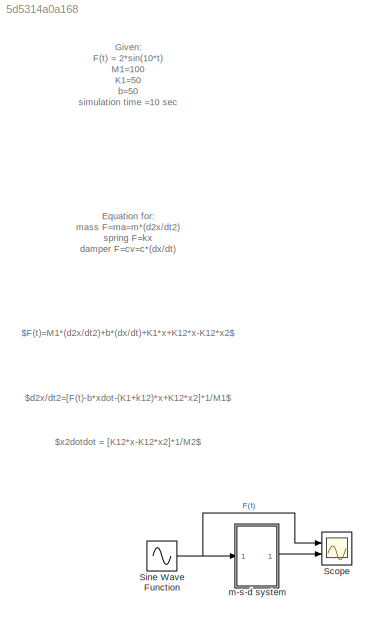
MODEL slx_5d5314a0a168
KIND model
CONFIG AbsTol = auto
CONFIG EnableMultiTasking = off
CONFIG FixedStep = 0.01
CONFIG MaxStep = auto
CONFIG MinStep = auto
CONFIG RelTol = 1e-3
CONFIG SampleTimeConstraint = Unconstrained
CONFIG SolverName = FixedStepAuto
CONFIG StartTime = 0.0
CONFIG StopTime = 100
WORKSPACE source: mxarray member
WORKSPACE K12 = 10000
WORKSPACE M2 = 100
BLOCK [Scope] Scope
  Floating = off
  NumInputPorts = 2
  Ports = [2]
  ScopeSpecificationString = Simulink.scopes.TimeScopeBlockCfg('CurrentConfiguration', extmgr.ConfigurationSet(extmgr.Configuration('Core','General UI',true),extmgr.Configuration('Core','Source UI',true),extmgr.Configuration('Sources','WiredSimulink',true),extmgr.Configuration('Visuals','Time Domain',true,'SerializedDisplays',{struct('MinYLimReal','-2.49998','MaxYLimReal','2.49999','YLabelReal','','MinYLimMag','0.00000','MaxY...<+2070ch>
BLOCK [Sin] Sine Wave Function
  Amplitude = 2
  Frequency = 10
  Ports = [0, 1]
  SampleTime = 0
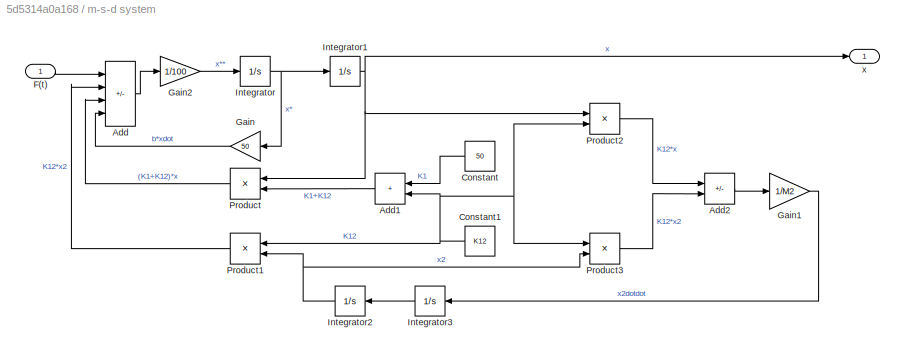
BLOCK [SubSystem] m-s-d system
  Ports = [1, 1]
  RequestExecContextInheritance = off
BLOCK [Sum] m-s-d system/Add
  IconShape = rectangular
  Inputs = ++--
  Ports = [4, 1]
BLOCK [Sum] m-s-d system/Add1
  IconShape = rectangular
  Ports = [2, 1]
BLOCK [Sum] m-s-d system/Add2
  IconShape = rectangular
  Inputs = +-
  Ports = [2, 1]
BLOCK [Constant] m-s-d system/Constant
  Value = 50
BLOCK [Constant] m-s-d system/Constant1
  Value = K12
BLOCK [Inport] m-s-d system/F(t)
BLOCK [Gain] m-s-d system/Gain
  Gain = 50
BLOCK [Gain] m-s-d system/Gain1
  Gain = 1/M2
BLOCK [Gain] m-s-d system/Gain2
  Gain = 1/100
BLOCK [Integrator] m-s-d system/Integrator
  Ports = [1, 1]
BLOCK [Integrator] m-s-d system/Integrator1
  Ports = [1, 1]
BLOCK [Integrator] m-s-d system/Integrator2
  Ports = [1, 1]
BLOCK [Integrator] m-s-d system/Integrator3
  Ports = [1, 1]
BLOCK [Product] m-s-d system/Product
  Ports = [2, 1]
BLOCK [Product] m-s-d system/Product1
  Ports = [2, 1]
BLOCK [Product] m-s-d system/Product2
  Ports = [2, 1]
BLOCK [Product] m-s-d system/Product3
  Ports = [2, 1]
BLOCK [Outport] m-s-d system/x
ANNOTATION (root): Equation for: mass F=ma=m*( d 2 x / d t 2 ) spring F=kx damper F=cv=c*(dx/dt)
ANNOTATION (root): Given: F(t) = 2*sin(10*t) M1=100 K1=50 b=50 simulation time =10 sec
ANNOTATION (root): $x2dotdot = [K12*x-K12*x2]*1/M2$
ANNOTATION (root): $d2x/dt2=[F(t)-b*xdot-(K1+k12)*x+K12*x2]*1/M1$
ANNOTATION (root): $F(t)=M1*(d2x/dt2)+b*(dx/dt)+K1*x+K12*x-K12*x2$
NET Sine Wave Function:1 -> Scope:1, m-s-d system:1
LINE m-s-d system/Add1:1 -> m-s-d system/Product:2
LINE m-s-d system/Add2:1 -> m-s-d system/Gain1:1
LINE m-s-d system/Add:1 -> m-s-d system/Gain2:1
NET m-s-d system/Constant1:1 -> m-s-d system/Add1:2, m-s-d system/Product1:1, m-s-d system/Product2:2, m-s-d system/Product3:1
LINE m-s-d system/Constant:1 -> m-s-d system/Add1:1
LINE m-s-d system/F(t):1 -> m-s-d system/Add:1
LINE m-s-d system/Gain1:1 -> m-s-d system/Integrator3:1
LINE m-s-d system/Gain2:1 -> m-s-d system/Integrator:1
LINE m-s-d system/Gain:1 -> m-s-d system/Add:4
NET m-s-d system/Integrator1:1 -> m-s-d system/Product2:1, m-s-d system/Product:1, m-s-d system/x:1
NET m-s-d system/Integrator2:1 -> m-s-d system/Product1:2, m-s-d system/Product3:2
LINE m-s-d system/Integrator3:1 -> m-s-d system/Integrator2:1
NET m-s-d system/Integrator:1 -> m-s-d system/Gain:1, m-s-d system/Integrator1:1
LINE m-s-d system/Product1:1 -> m-s-d system/Add:2
LINE m-s-d system/Product2:1 -> m-s-d system/Add2:1
LINE m-s-d system/Product3:1 -> m-s-d system/Add2:2
LINE m-s-d system/Product:1 -> m-s-d system/Add:3
LINE m-s-d system:1 -> Scope:2
note: NET lines group one-source signal fan-out (src -> all destinations, sorted); 1:1 wires keep LINE
